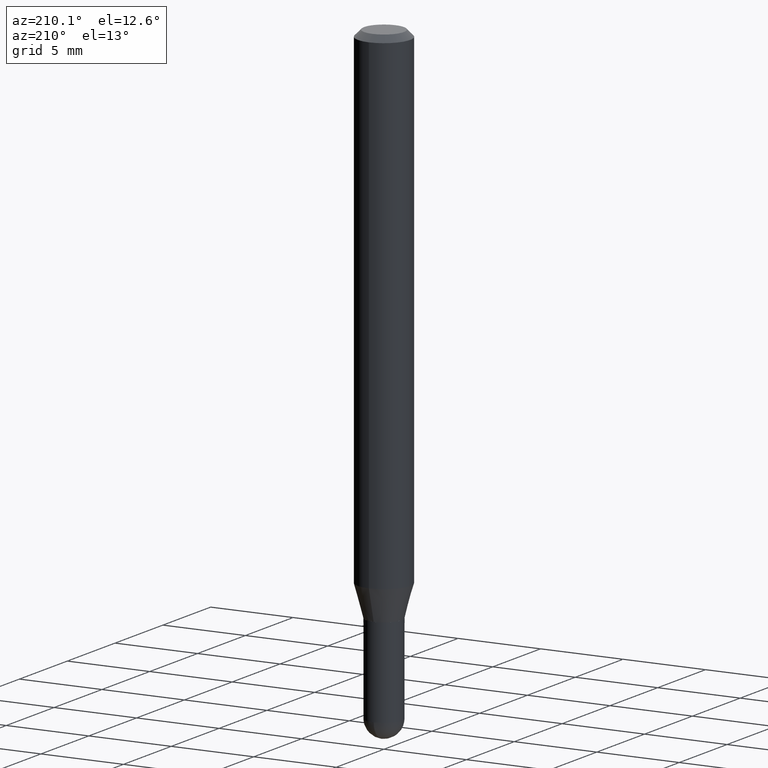
[diagram: clean part render]
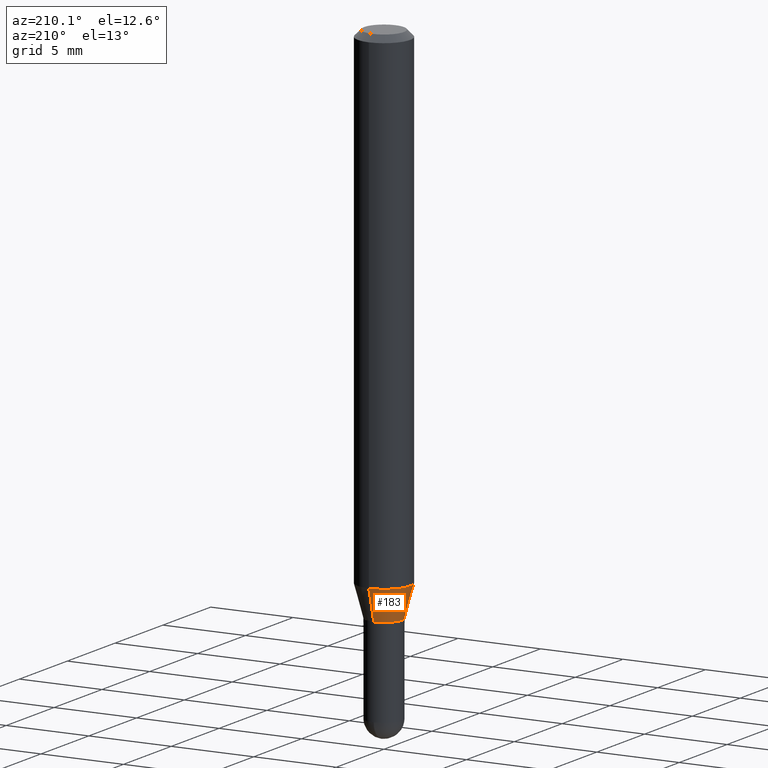
[diagram: same view with one face highlighted and labeled with its STEP entity id]
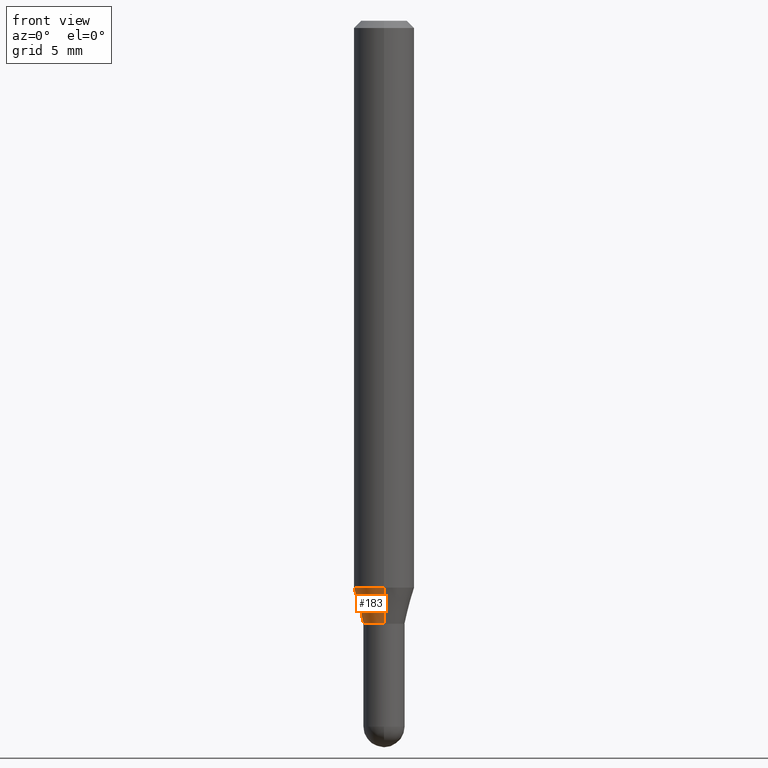
[diagram: same view with one face highlighted and labeled with its STEP entity id]
A machine part, auxiliary view. The second image highlights one B-rep face of the part: STEP entity #183.
A second angle (front view) of the same face is appended — the face is thin or edge-on in the first view.
In plain terms, the highlighted conical surface has half-angle 15 deg.
Its self-contained STEP definition (entity closure, byte-faithful):
#8 = EDGE_CURVE ( 'NONE', #411, #455, #431, .T. ) ;
#13 = DIRECTION ( 'NONE',  ( -1.807323732225377471E-15, -0.2588190451025249583, 0.9659258262890670910 ) ) ;
#20 = CARTESIAN_POINT ( 'NONE',  ( 3.044647854309380213E-29, -4.346838143677201535E-15, -1.244999999999999885 ) ) ;
#28 = CARTESIAN_POINT ( 'NONE',  ( -2.967759138016372164E-16, -0.04250000000000454109, -1.244999999999999662 ) ) ;
#32 = CARTESIAN_POINT ( 'NONE',  ( 3.019806626980743523E-16, 0.04249999999999585359, -1.245000000000000329 ) ) ;
#44 = DIRECTION ( 'NONE',  ( -6.982962677686265922E-15, -1.000000000000000000, 6.427877632151177410E-15 ) ) ;
#51 = ORIENTED_EDGE ( 'NONE', *, *, #136, .F. ) ;
#60 = EDGE_LOOP ( 'NONE', ( #389, #234, #464, #51 ) ) ;
#70 = VECTOR ( 'NONE', #13, 39.37007874015748854 ) ;
#75 = AXIS2_PLACEMENT_3D ( 'NONE', #20, #468, #115 ) ;
#84 = VERTEX_POINT ( 'NONE', #28 ) ;
#90 = EDGE_CURVE ( 'NONE', #411, #84, #305, .T. ) ;
#110 = CARTESIAN_POINT ( 'NONE',  ( 3.730349362740827577E-16, 0.04249999999999585359, -1.245000000000000329 ) ) ;
#115 = DIRECTION ( 'NONE',  ( -6.982962677686265922E-15, -1.000000000000000000, 6.427877632151177410E-15 ) ) ;
#136 = EDGE_CURVE ( 'NONE', #455, #500, #212, .T. ) ;
#165 = DIRECTION ( 'NONE',  ( -2.445500284585847843E-29, 3.491436259981687850E-15, 1.000000000000000000 ) ) ;
#166 = DIRECTION ( 'NONE',  ( -2.445500284585847843E-29, 3.491436259981687850E-15, 1.000000000000000000 ) ) ;
#168 = CARTESIAN_POINT ( 'NONE',  ( 3.044647854309380213E-29, -4.346838143677201535E-15, -1.244999999999999885 ) ) ;
#169 = VECTOR ( 'NONE', #271, 39.37007874015748143 ) ;
#172 = CONICAL_SURFACE ( 'NONE', #433, 0.04250000000000019734, 0.2617993877991572904 ) ;
#183 = ADVANCED_FACE ( 'NONE', ( #512 ), #172, .T. ) ;
#196 = CARTESIAN_POINT ( 'NONE',  ( 4.440892098500914096E-16, 0.06249999999999594075, -1.170358983848625689 ) ) ;
#208 = DIRECTION ( 'NONE',  ( -6.982962677686265922E-15, -1.000000000000000000, 4.370956789862821150E-15 ) ) ;
#212 = CIRCLE ( 'NONE', #482, 0.06250000000000000000 ) ;
#216 = CARTESIAN_POINT ( 'NONE',  ( -2.967759138016372164E-16, -0.04250000000000454109, -1.244999999999999662 ) ) ;
#234 = ORIENTED_EDGE ( 'NONE', *, *, #90, .T. ) ;
#247 = CARTESIAN_POINT ( 'NONE',  ( 2.862113228069417180E-29, -4.086233793404413887E-15, -1.170358983848625467 ) ) ;
#271 = DIRECTION ( 'NONE',  ( 1.839019923739648436E-15, 0.2588190451025317307, 0.9659258262890653146 ) ) ;
#299 = CARTESIAN_POINT ( 'NONE',  ( -4.364351673553628267E-16, -0.06250000000000405231, -1.170358983848625245 ) ) ;
#305 = CIRCLE ( 'NONE', #75, 0.04250000000000019734 ) ;
#327 = EDGE_CURVE ( 'NONE', #84, #500, #374, .T. ) ;
#374 = LINE ( 'NONE', #216, #70 ) ;
#389 = ORIENTED_EDGE ( 'NONE', *, *, #8, .F. ) ;
#411 = VERTEX_POINT ( 'NONE', #110 ) ;
#431 = LINE ( 'NONE', #32, #169 ) ;
#433 = AXIS2_PLACEMENT_3D ( 'NONE', #168, #166, #44 ) ;
#455 = VERTEX_POINT ( 'NONE', #196 ) ;
#464 = ORIENTED_EDGE ( 'NONE', *, *, #327, .T. ) ;
#468 = DIRECTION ( 'NONE',  ( -2.445500284585847843E-29, 3.491436259981687850E-15, 1.000000000000000000 ) ) ;
#482 = AXIS2_PLACEMENT_3D ( 'NONE', #247, #165, #208 ) ;
#500 = VERTEX_POINT ( 'NONE', #299 ) ;
#512 = FACE_OUTER_BOUND ( 'NONE', #60, .T. ) ;